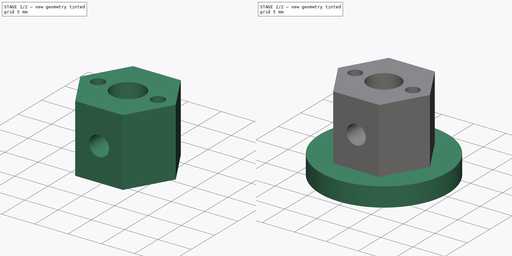
[diagram: build sequence overview — one tinted view per stage of 2, left to right]
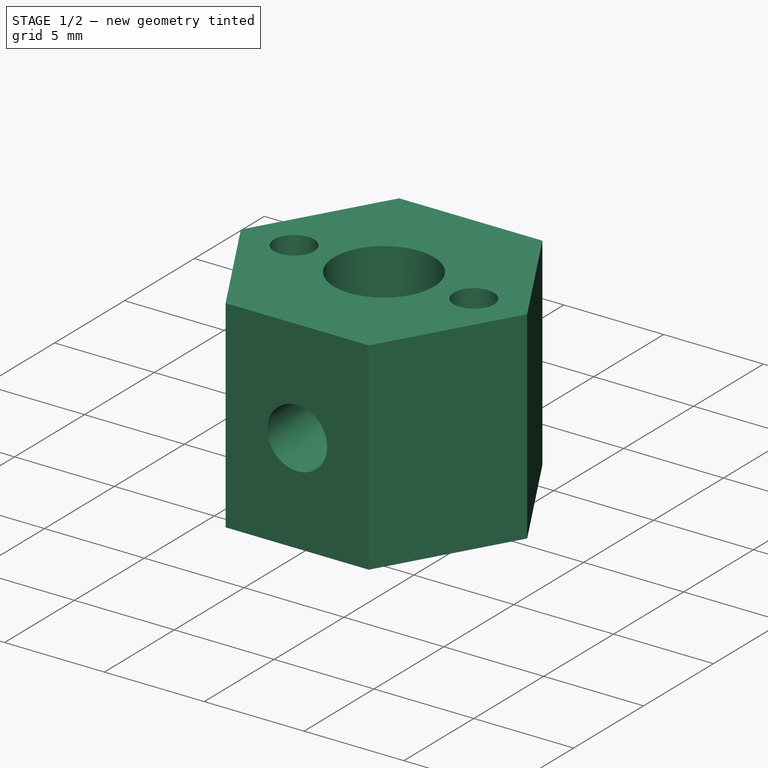
[diagram: stage 1 of 2 — iso view after this stage's code; geometry added in this stage tinted green]
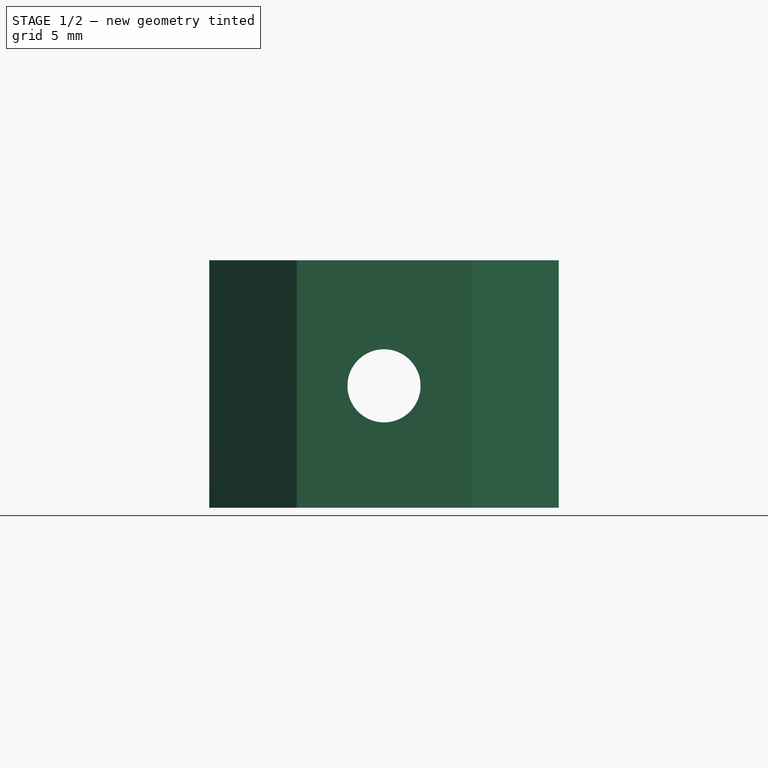
[diagram: stage 1 of 2 — front view after this stage's code; geometry added in this stage tinted green]
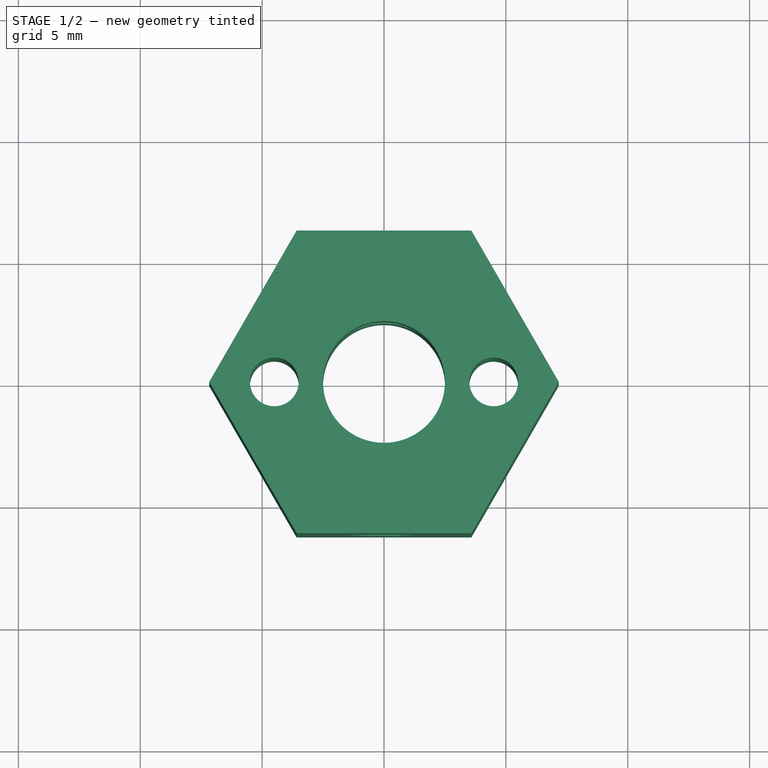
[diagram: stage 1 of 2 — top view after this stage's code; geometry added in this stage tinted green]
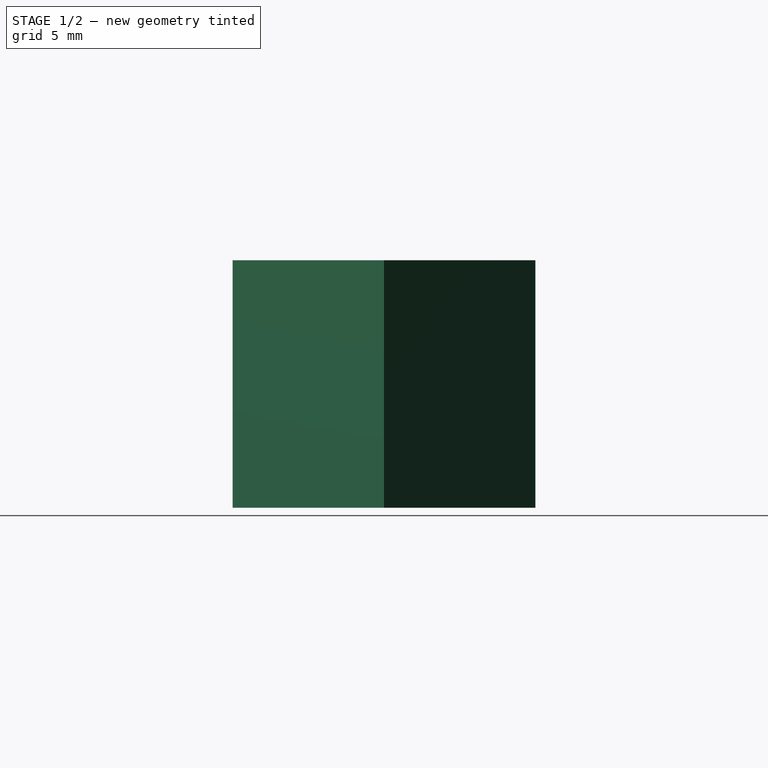
[diagram: stage 1 of 2 — right view after this stage's code; geometry added in this stage tinted green]
FCSTD DOCUMENT  (FreeCAD 0.16R6707 (Git))
Label: couplage roue
License: All rights reserved
LicenseURL: http://en.wikipedia.org/wiki/All_rights_reserved
objects: Sketcher::SketchObject×3, PartDesign::Pad×2, PartDesign::Pocket×1
note: 9 computed .brp shape members not serialized (recipe doc carries the construction recipe); baked Part::Feature solids carry a one-line shape summary decoded from their .brp

FEATURE [Sketcher::SketchObject] Sketch
  sketch-geometry (12):
    g0: LineSegment StartX=-7.17 StartY=0 StartZ=0 EndX=-3.585 EndY=-6.2094 EndZ=0
    g1: LineSegment StartX=-3.585 StartY=-6.2094 StartZ=0 EndX=3.585 EndY=-6.2094 EndZ=0
    g2: LineSegment StartX=3.585 StartY=-6.2094 StartZ=0 EndX=7.17 EndY=0 EndZ=0
    g3: LineSegment StartX=7.17 StartY=0 StartZ=0 EndX=3.585 EndY=6.2094 EndZ=0
    g4: LineSegment StartX=3.585 StartY=6.2094 StartZ=0 EndX=-3.585 EndY=6.2094 EndZ=0
    g5: LineSegment StartX=-3.585 StartY=6.2094 StartZ=0 EndX=-7.17 EndY=0 EndZ=0
    g6: Circle [constr] CenterX=0 CenterY=0 CenterZ=0 NormalX=0 NormalY=0 NormalZ=1 Radius=7.17
    g7: Circle CenterX=0 CenterY=0 CenterZ=0 NormalX=0 NormalY=0 NormalZ=1 Radius=2.5
    g8: GeomPoint [constr] X=-4.5 Y=0 Z=0
    g9: GeomPoint [constr] X=4.5 Y=0 Z=0
    g10: Circle CenterX=4.5 CenterY=0 CenterZ=0 NormalX=0 NormalY=0 NormalZ=1 Radius=1
    g11: Circle CenterX=-4.5 CenterY=0 CenterZ=0 NormalX=0 NormalY=0 NormalZ=1 Radius=1
  constraints (26):
    c: Coincident(g0,g1)
    c: Coincident(g1,g2)
    c: Coincident(g2,g3)
    c: Coincident(g3,g4)
    c: Coincident(g4,g5)
    c: Coincident(g5,g0)
    c: Equal(g0, g1-g5) x5
    c: PointOnObject(g0,g6)
    c: PointOnObject(g1,g6)
    c: PointOnObject(g2,g6)
    c: PointOnObject(g3,g6)
    c: PointOnObject(g4,g6)
    c: PointOnObject(g5,g6)
    c: Coincident(g6,g-1)
    c: PointOnObject(g5,g-1)
    c: DistanceX(g0,g-1) = 7.17
    c: Coincident(g7,g-1)
    c: Radius(g7) = 2.5
    c: PointOnObject(g8,g-1)
    c: PointOnObject(g9,g-1)
    c: DistanceX(g9) = 4.5
    c: Coincident(g10,g9)
    c: Radius(g10) = 1
    c: DistanceX(g8) = -4.5
    c: Coincident(g11,g8)
    c: Radius(g11) = 1
FEATURE [PartDesign::Pad] Pad
  Length = 10.15
  Length2 = 100
  Sketch = -> Sketch
  Type = 0
FEATURE [Sketcher::SketchObject] Sketch001
  Placement = pos=(0,6.2094,0) rot=(0,0.707107,0.707107;3.14159rad)
  Support = -> Pad [Face5]
  sketch-geometry (2):
    g0: GeomPoint [constr] X=0 Y=5 Z=0
    g1: Circle CenterX=0 CenterY=5 CenterZ=0 NormalX=0 NormalY=0 NormalZ=1 Radius=1.5
  constraints (4):
    c: PointOnObject(g0,g-2)
    c: DistanceY(g0) = 5
    c: Coincident(g1,g0)
    c: Radius(g1) = 1.5
FEATURE [PartDesign::Pocket] Pocket
  Length = 5
  Sketch = -> Sketch001
  Type = 1
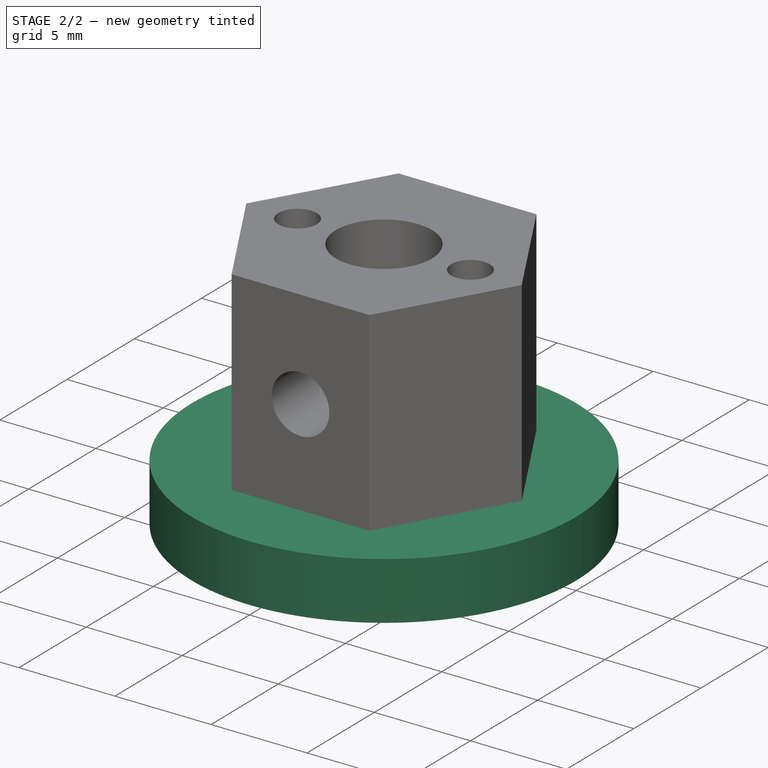
[diagram: stage 2 of 2 — iso view after this stage's code; geometry added in this stage tinted green]
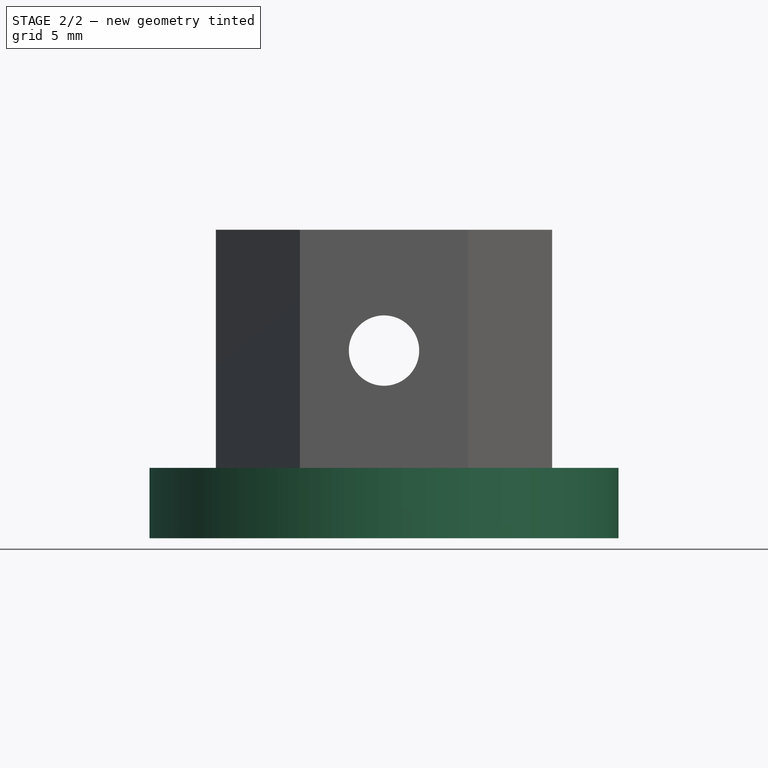
[diagram: stage 2 of 2 — front view after this stage's code; geometry added in this stage tinted green]
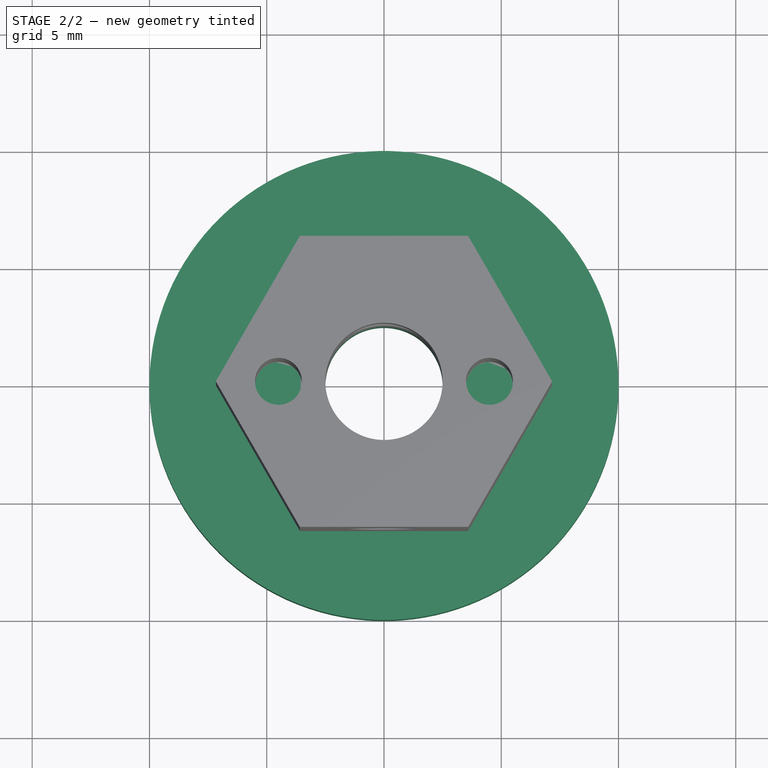
[diagram: stage 2 of 2 — top view after this stage's code; geometry added in this stage tinted green]
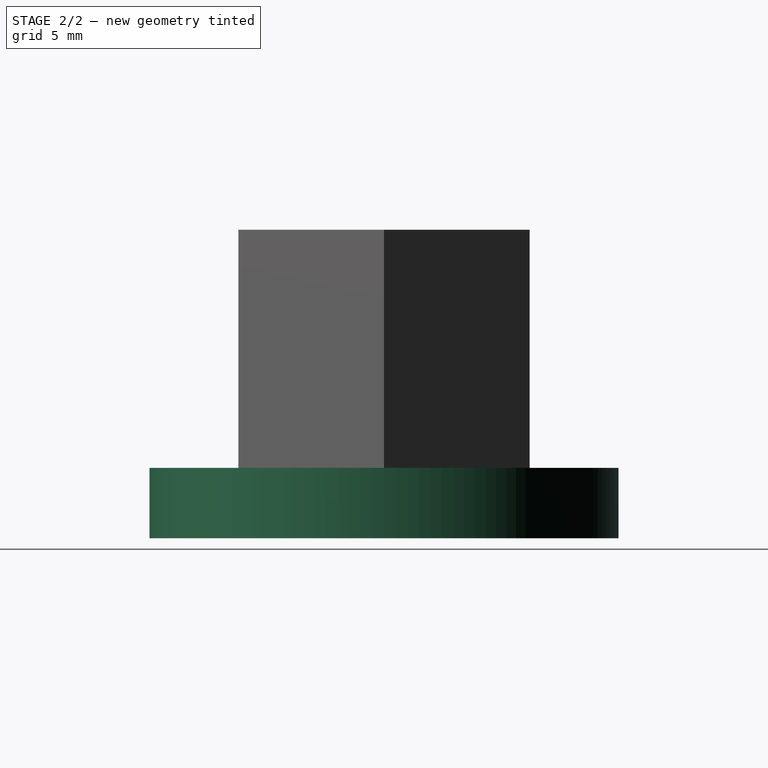
[diagram: stage 2 of 2 — right view after this stage's code; geometry added in this stage tinted green]
FEATURE [Sketcher::SketchObject] Sketch002
  Placement = pos=(0,0,0) rot=(1,0,0;3.14159rad)
  Support = -> Pocket [Face4]
  sketch-geometry (2):
    g0: Circle CenterX=0 CenterY=0 CenterZ=0 NormalX=0 NormalY=0 NormalZ=1 Radius=10
    g1: Circle CenterX=0 CenterY=0 CenterZ=0 NormalX=0 NormalY=0 NormalZ=1 Radius=2.5
  constraints (4):
    c: Coincident(g0,g-1)
    c: Radius(g0) = 10
    c: Coincident(g1,g-1)
    c: Radius(g1) = 2.5
FEATURE [PartDesign::Pad] Pad001
  Length = 3
  Length2 = 100
  Sketch = -> Sketch002
  Type = 0
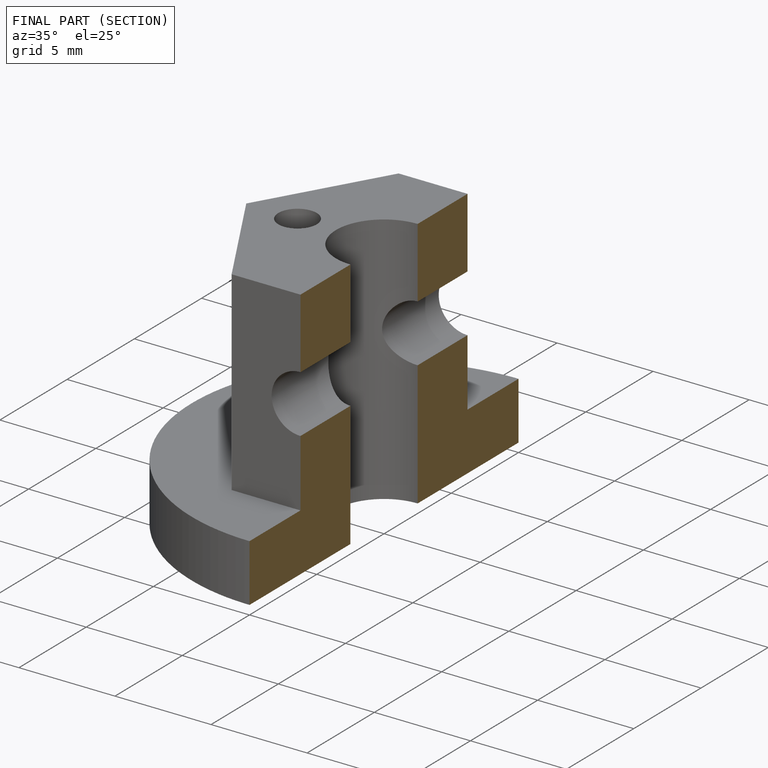
[diagram: finished part — half-section view (interior)]
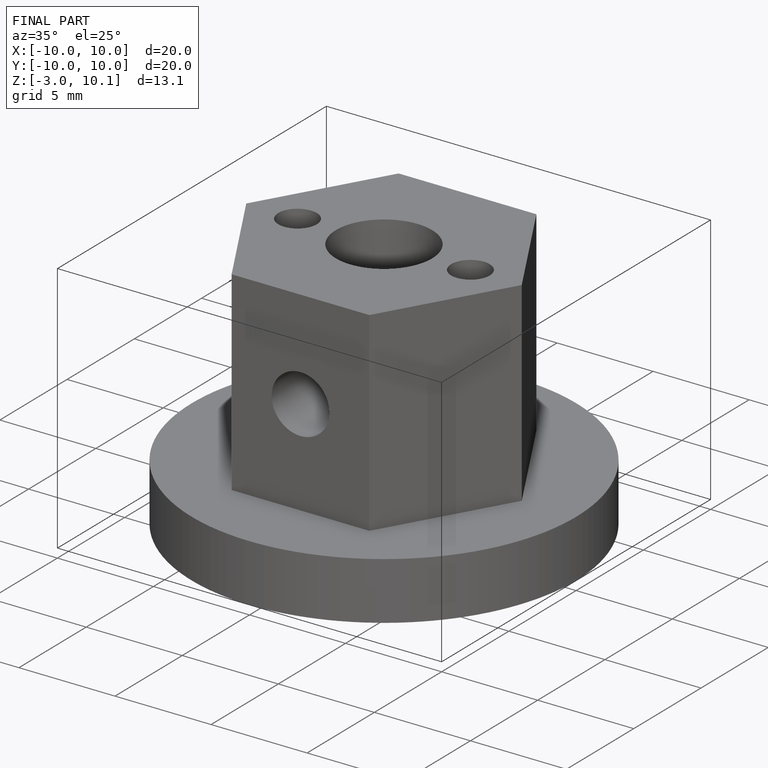
[diagram: finished part — iso view with bounding-box wireframe]
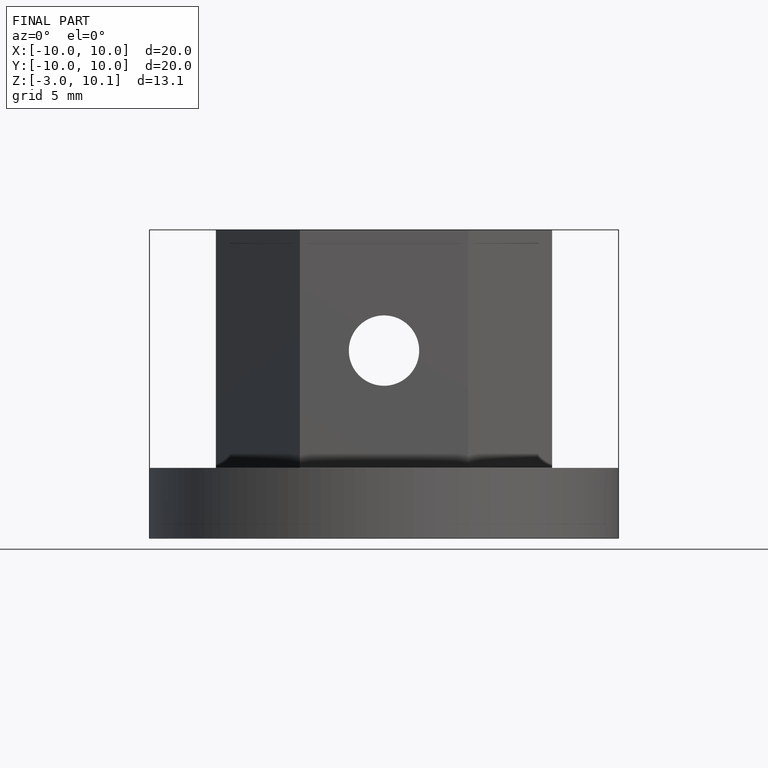
[diagram: finished part — front view with bounding-box wireframe]
